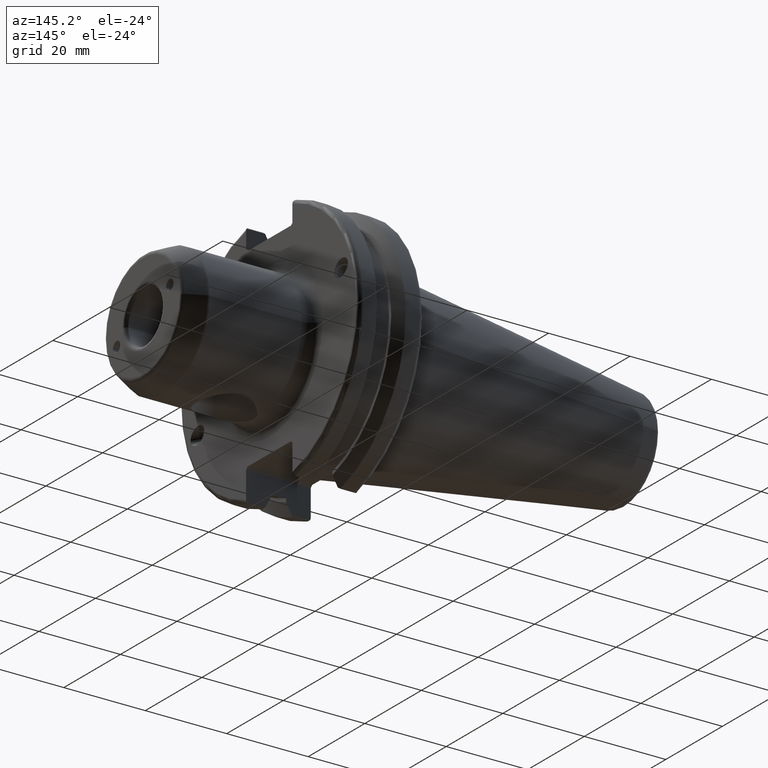
[diagram: clean part render]
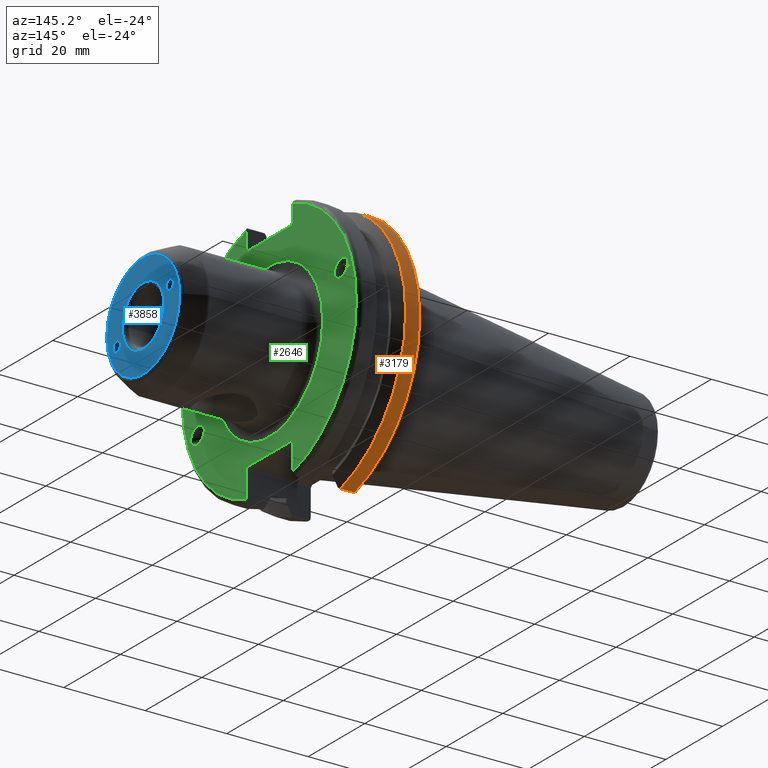
[diagram: same view with three faces highlighted in distinct colors, each labeled with its STEP entity id]
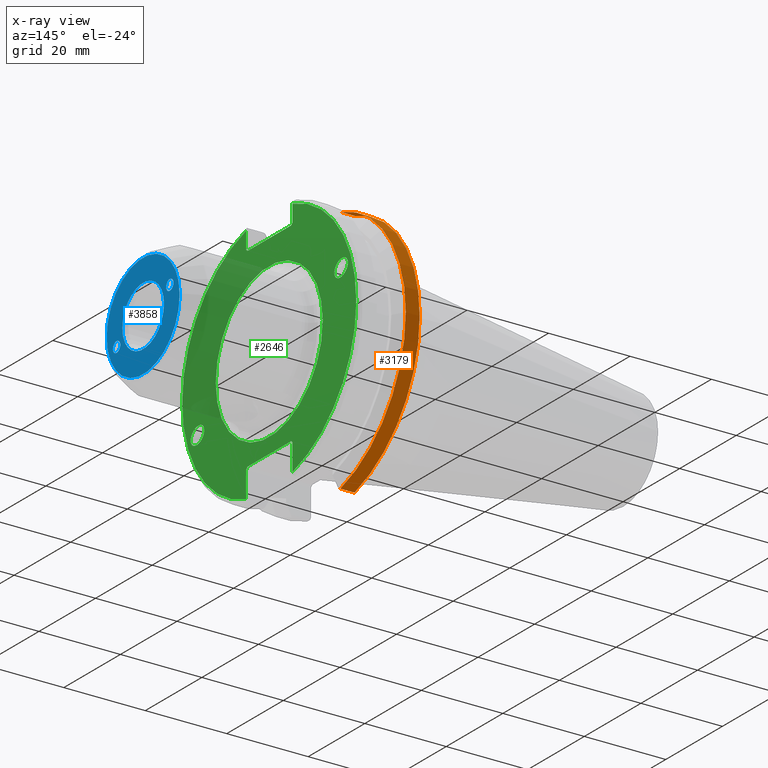
[diagram: x-ray of the same camera — body ghosted, the three highlighted faces saturated]
A machine part, auxiliary view with three faces highlighted in distinct colors.
The next image is the same camera in x-ray (body ghosted, the three faces saturated) — at least one of them is partly hidden behind the body in this view.
Their STEP definitions:

[orange] entity #3179 — the highlighted cylindrical surface (partial cylindrical patch) has radius 31.75 mm, axis along (1, 0, 0).
#836=CARTESIAN_POINT('',(7.607933230924E0,8.672048228027E0,3.054272547647E1));
#843=CARTESIAN_POINT('',(7.607933230924E0,0.E0,0.E0));
#844=DIRECTION('',(1.E0,0.E0,0.E0));
#845=DIRECTION('',(0.E0,1.E0,0.E0));
#846=AXIS2_PLACEMENT_3D('',#843,#844,#845);
#848=CARTESIAN_POINT('',(7.607933230924E0,0.E0,0.E0));
#849=DIRECTION('',(1.E0,0.E0,0.E0));
#850=DIRECTION('',(0.E0,2.731353772607E-1,-9.619756055580E-1));
#851=AXIS2_PLACEMENT_3D('',#848,#849,#850);
#861=CARTESIAN_POINT('',(4.175E0,0.E0,0.E0));
#862=DIRECTION('',(-1.E0,0.E0,0.E0));
#863=DIRECTION('',(0.E0,2.731353772607E-1,9.619756055580E-1));
#864=AXIS2_PLACEMENT_3D('',#861,#862,#863);
#866=CARTESIAN_POINT('',(4.175E0,8.672048228027E0,3.054272547647E1));
#874=DIRECTION('',(-1.E0,0.E0,0.E0));
#875=VECTOR('',#874,3.432933230924E0);
#876=CARTESIAN_POINT('',(7.607933230924E0,8.672048228027E0,-3.054272547647E1));
#877=LINE('',#876,#875);
#878=DIRECTION('',(1.E0,0.E0,0.E0));
#879=VECTOR('',#878,3.432933230924E0);
#880=CARTESIAN_POINT('',(4.175E0,8.672048228027E0,3.054272547647E1));
#881=LINE('',#880,#879);
#2116=VERTEX_POINT('',#866);
#2118=CARTESIAN_POINT('',(4.175E0,8.672048228027E0,-3.054272547647E1));
#2119=VERTEX_POINT('',#2118);
#2120=CARTESIAN_POINT('',(7.607933230924E0,8.672048228027E0,-3.054272547647E1));
#2121=VERTEX_POINT('',#2120);
#2146=VERTEX_POINT('',#836);
#2147=CARTESIAN_POINT('',(7.607933230924E0,3.175E1,0.E0));
#2148=VERTEX_POINT('',#2147);
#3167=CARTESIAN_POINT('',(5.391466615462E0,0.E0,0.E0));
#3168=DIRECTION('',(1.E0,0.E0,0.E0));
#3169=DIRECTION('',(0.E0,1.E0,0.E0));
#3170=AXIS2_PLACEMENT_3D('',#3167,#3168,#3169);
#3171=CYLINDRICAL_SURFACE('',#3170,3.175E1);
#3172=ORIENTED_EDGE('',*,*,#3149,.T.);
#3173=ORIENTED_EDGE('',*,*,#3133,.F.);
#3174=ORIENTED_EDGE('',*,*,#3119,.T.);
#3175=ORIENTED_EDGE('',*,*,#3117,.T.);
#3176=ORIENTED_EDGE('',*,*,#3160,.F.);
#3177=EDGE_LOOP('',(#3172,#3173,#3174,#3175,#3176));
#3178=FACE_OUTER_BOUND('',#3177,.F.);
#3179=ADVANCED_FACE('',(#3178),#3171,.T.);
#847=CIRCLE('',#846,3.175E1);
#852=CIRCLE('',#851,3.175E1);
#865=CIRCLE('',#864,3.175E1);
#3117=EDGE_CURVE('',#2148,#2146,#847,.T.);
#3119=EDGE_CURVE('',#2121,#2148,#852,.T.);
#3133=EDGE_CURVE('',#2121,#2119,#877,.T.);
#3149=EDGE_CURVE('',#2116,#2119,#865,.T.);
#3160=EDGE_CURVE('',#2116,#2146,#881,.T.);

[blue] entity #3858 — the highlighted planar face has unit normal (1, 0, 0).
#1531=CARTESIAN_POINT('',(5.E1,-2.500000000094E-2,0.E0));
#1532=DIRECTION('',(1.E0,0.E0,0.E0));
#1533=DIRECTION('',(0.E0,-1.E0,0.E0));
#1534=AXIS2_PLACEMENT_3D('',#1531,#1532,#1533);
#1536=CARTESIAN_POINT('',(5.E1,-2.500000000094E-2,0.E0));
#1537=DIRECTION('',(1.E0,0.E0,0.E0));
#1538=DIRECTION('',(0.E0,1.E0,0.E0));
#1539=AXIS2_PLACEMENT_3D('',#1536,#1537,#1538);
#1541=CARTESIAN_POINT('',(5.E1,-1.069972973270E1,-3.422240036628E0));
#1542=CARTESIAN_POINT('',(5.E1,-1.069972973270E1,-3.268989945432E0));
#1543=CARTESIAN_POINT('',(5.E1,-1.064382878668E1,-2.937833489841E0));
#1544=CARTESIAN_POINT('',(5.E1,-1.034655075062E1,-2.474723060525E0));
#1545=CARTESIAN_POINT('',(5.E1,-9.878852699807E0,-2.176128646144E0));
#1546=CARTESIAN_POINT('',(5.E1,-9.396926207859E0,-2.092059665098E0));
#1547=CARTESIAN_POINT('',(5.E1,-8.914999715911E0,-2.174620426444E0));
#1548=CARTESIAN_POINT('',(5.E1,-8.447301665097E0,-2.471751149938E0));
#1549=CARTESIAN_POINT('',(5.E1,-8.150023629043E0,-2.933931228675E0));
#1550=CARTESIAN_POINT('',(5.E1,-8.094122683018E0,-3.264912738689E0));
#1551=CARTESIAN_POINT('',(5.E1,-8.094122683018E0,-3.418162829886E0));
#1553=CARTESIAN_POINT('',(5.E1,-8.094122683018E0,-3.418162829886E0));
#1554=CARTESIAN_POINT('',(5.E1,-8.094122683018E0,-3.571412921082E0));
#1555=CARTESIAN_POINT('',(5.E1,-8.150023629043E0,-3.902569376673E0));
#1556=CARTESIAN_POINT('',(5.E1,-8.447301665097E0,-4.365679805988E0));
#1557=CARTESIAN_POINT('',(5.E1,-8.914999715911E0,-4.664274220369E0));
#1558=CARTESIAN_POINT('',(5.E1,-9.396926207859E0,-4.748343201416E0));
#1559=CARTESIAN_POINT('',(5.E1,-9.878852699807E0,-4.665782440070E0));
#1560=CARTESIAN_POINT('',(5.E1,-1.034655075062E1,-4.368651716575E0));
#1561=CARTESIAN_POINT('',(5.E1,-1.064382878668E1,-3.906471637838E0));
#1562=CARTESIAN_POINT('',(5.E1,-1.069972973270E1,-3.575490127824E0));
#1563=CARTESIAN_POINT('',(5.E1,-1.069972973270E1,-3.422240036628E0));
#1565=CARTESIAN_POINT('',(5.E1,8.094122683018E0,3.418162829886E0));
#1566=CARTESIAN_POINT('',(5.E1,8.094122683018E0,3.571412921082E0));
#1567=CARTESIAN_POINT('',(5.E1,8.150023629043E0,3.902569376673E0));
#1568=CARTESIAN_POINT('',(5.E1,8.447301665097E0,4.365679805988E0));
#1569=CARTESIAN_POINT('',(5.E1,8.914999715911E0,4.664274220369E0));
#1570=CARTESIAN_POINT('',(5.E1,9.396926207859E0,4.748343201416E0));
#1571=CARTESIAN_POINT('',(5.E1,9.878852699807E0,4.665782440070E0));
#1572=CARTESIAN_POINT('',(5.E1,1.034655075062E1,4.368651716575E0));
#1573=CARTESIAN_POINT('',(5.E1,1.064382878668E1,3.906471637838E0));
#1574=CARTESIAN_POINT('',(5.E1,1.069972973270E1,3.575490127824E0));
#1575=CARTESIAN_POINT('',(5.E1,1.069972973270E1,3.422240036628E0));
#1577=CARTESIAN_POINT('',(5.E1,1.069972973270E1,3.422240036628E0));
#1578=CARTESIAN_POINT('',(5.E1,1.069972973270E1,3.268989945432E0));
#1579=CARTESIAN_POINT('',(5.E1,1.064382878668E1,2.937833489841E0));
#1580=CARTESIAN_POINT('',(5.E1,1.034655075062E1,2.474723060525E0));
#1581=CARTESIAN_POINT('',(5.E1,9.878852699807E0,2.176128646144E0));
#1582=CARTESIAN_POINT('',(5.E1,9.396926207859E0,2.092059665098E0));
#1583=CARTESIAN_POINT('',(5.E1,8.914999715911E0,2.174620426444E0));
#1584=CARTESIAN_POINT('',(5.E1,8.447301665097E0,2.471751149938E0));
#1585=CARTESIAN_POINT('',(5.E1,8.150023629043E0,2.933931228675E0));
#1586=CARTESIAN_POINT('',(5.E1,8.094122683018E0,3.264912738689E0));
#1587=CARTESIAN_POINT('',(5.E1,8.094122683018E0,3.418162829886E0));
#1599=CARTESIAN_POINT('',(5.E1,0.E0,0.E0));
#1600=DIRECTION('',(-1.E0,0.E0,0.E0));
#1601=DIRECTION('',(0.E0,1.E0,0.E0));
#1602=AXIS2_PLACEMENT_3D('',#1599,#1600,#1601);
#1604=CARTESIAN_POINT('',(5.E1,0.E0,0.E0));
#1605=DIRECTION('',(1.E0,0.E0,0.E0));
#1606=DIRECTION('',(0.E0,1.E0,0.E0));
#1607=AXIS2_PLACEMENT_3D('',#1604,#1605,#1606);
#2285=CARTESIAN_POINT('',(5.E1,1.288792973919E1,0.E0));
#2287=VERTEX_POINT('',#2285);
#2295=CARTESIAN_POINT('',(5.E1,-1.288792973919E1,0.E0));
#2297=VERTEX_POINT('',#2295);
#2325=CARTESIAN_POINT('',(5.E1,-7.375000000001E0,0.E0));
#2326=CARTESIAN_POINT('',(5.E1,7.324999999999E0,0.E0));
#2327=VERTEX_POINT('',#2325);
#2328=VERTEX_POINT('',#2326);
#2365=VERTEX_POINT('',#1541);
#2366=VERTEX_POINT('',#1551);
#2369=VERTEX_POINT('',#1565);
#2370=VERTEX_POINT('',#1575);
#3831=CARTESIAN_POINT('',(5.E1,0.E0,0.E0));
#3832=DIRECTION('',(1.E0,0.E0,0.E0));
#3833=DIRECTION('',(0.E0,-1.E0,0.E0));
#3834=AXIS2_PLACEMENT_3D('',#3831,#3832,#3833);
#3835=PLANE('',#3834);
#3837=ORIENTED_EDGE('',*,*,#3836,.T.);
#3839=ORIENTED_EDGE('',*,*,#3838,.F.);
#3840=EDGE_LOOP('',(#3837,#3839));
#3841=FACE_OUTER_BOUND('',#3840,.F.);
#3843=ORIENTED_EDGE('',*,*,#3842,.T.);
#3845=ORIENTED_EDGE('',*,*,#3844,.T.);
#3846=EDGE_LOOP('',(#3843,#3845));
#3847=FACE_BOUND('',#3846,.F.);
#3849=ORIENTED_EDGE('',*,*,#3848,.F.);
#3851=ORIENTED_EDGE('',*,*,#3850,.F.);
#3852=EDGE_LOOP('',(#3849,#3851));
#3853=FACE_BOUND('',#3852,.F.);
#3854=ORIENTED_EDGE('',*,*,#3811,.F.);
#3855=ORIENTED_EDGE('',*,*,#3825,.F.);
#3856=EDGE_LOOP('',(#3854,#3855));
#3857=FACE_BOUND('',#3856,.F.);
#3858=ADVANCED_FACE('',(#3841,#3847,#3853,#3857),#3835,.T.);
#1535=CIRCLE('',#1534,7.35E0);
#1540=CIRCLE('',#1539,7.35E0);
#1552=B_SPLINE_CURVE_WITH_KNOTS('',3,(#1541,#1542,#1543,#1544,#1545,#1546,#1547,
#1548,#1549,#1550,#1551),.UNSPECIFIED.,.F.,.F.,(4,1,1,1,1,1,1,1,4),(0.E0,
1.25E-1,2.5E-1,3.75E-1,5.E-1,6.25E-1,7.5E-1,8.75E-1,1.E0),.UNSPECIFIED.);
#1564=B_SPLINE_CURVE_WITH_KNOTS('',3,(#1553,#1554,#1555,#1556,#1557,#1558,#1559,
#1560,#1561,#1562,#1563),.UNSPECIFIED.,.F.,.F.,(4,1,1,1,1,1,1,1,4),(0.E0,
1.25E-1,2.5E-1,3.75E-1,5.E-1,6.25E-1,7.5E-1,8.75E-1,1.E0),.UNSPECIFIED.);
#1576=B_SPLINE_CURVE_WITH_KNOTS('',3,(#1565,#1566,#1567,#1568,#1569,#1570,#1571,
#1572,#1573,#1574,#1575),.UNSPECIFIED.,.F.,.F.,(4,1,1,1,1,1,1,1,4),(0.E0,
1.25E-1,2.5E-1,3.75E-1,5.E-1,6.25E-1,7.5E-1,8.75E-1,1.E0),.UNSPECIFIED.);
#1588=B_SPLINE_CURVE_WITH_KNOTS('',3,(#1577,#1578,#1579,#1580,#1581,#1582,#1583,
#1584,#1585,#1586,#1587),.UNSPECIFIED.,.F.,.F.,(4,1,1,1,1,1,1,1,4),(0.E0,
1.25E-1,2.5E-1,3.75E-1,5.E-1,6.25E-1,7.5E-1,8.75E-1,1.E0),.UNSPECIFIED.);
#1603=CIRCLE('',#1602,1.288792973919E1);
#1608=CIRCLE('',#1607,1.288792973919E1);
#3811=EDGE_CURVE('',#2369,#2370,#1576,.T.);
#3825=EDGE_CURVE('',#2370,#2369,#1588,.T.);
#3836=EDGE_CURVE('',#2287,#2297,#1603,.T.);
#3838=EDGE_CURVE('',#2287,#2297,#1608,.T.);
#3842=EDGE_CURVE('',#2327,#2328,#1535,.T.);
#3844=EDGE_CURVE('',#2328,#2327,#1540,.T.);
#3848=EDGE_CURVE('',#2365,#2366,#1552,.T.);
#3850=EDGE_CURVE('',#2366,#2365,#1564,.T.);

[green] entity #2646 — the highlighted planar face has unit normal (1, 0, 0).
#283=CARTESIAN_POINT('',(1.905E1,0.E0,0.E0));
#284=DIRECTION('',(1.E0,0.E0,0.E0));
#285=DIRECTION('',(0.E0,2.663414634146E-1,-9.638787397106E-1));
#286=AXIS2_PLACEMENT_3D('',#283,#284,#285);
#288=DIRECTION('',(0.E0,7.071067811865E-1,-7.071067811866E-1));
#289=VECTOR('',#288,7.071067811865E-1);
#290=CARTESIAN_POINT('',(1.905E1,7.69E0,-2.26E1));
#291=LINE('',#290,#289);
#292=DIRECTION('',(0.E0,7.071067811866E-1,7.071067811865E-1));
#293=VECTOR('',#292,7.071067811865E-1);
#294=CARTESIAN_POINT('',(1.905E1,-8.19E0,-2.31E1));
#295=LINE('',#294,#293);
#296=CARTESIAN_POINT('',(1.905E1,0.E0,0.E0));
#297=DIRECTION('',(1.E0,0.E0,0.E0));
#298=DIRECTION('',(0.E0,-2.663414634146E-1,9.638787397106E-1));
#299=AXIS2_PLACEMENT_3D('',#296,#297,#298);
#301=DIRECTION('',(0.E0,-7.071067811865E-1,7.071067811865E-1));
#302=VECTOR('',#301,7.071067811865E-1);
#303=CARTESIAN_POINT('',(1.905E1,-7.69E0,2.5E1));
#304=LINE('',#303,#302);
#305=DIRECTION('',(0.E0,-7.071067811865E-1,-7.071067811865E-1));
#306=VECTOR('',#305,7.071067811865E-1);
#307=CARTESIAN_POINT('',(1.905E1,8.19E0,2.55E1));
#308=LINE('',#307,#306);
#309=CARTESIAN_POINT('',(1.905E1,-2.307739501582E1,-8.399484870160E0));
#310=CARTESIAN_POINT('',(1.905E1,-2.299678009493E1,-8.620972544956E0));
#311=CARTESIAN_POINT('',(1.905E1,-2.292107071815E1,-9.135287304495E0));
#312=CARTESIAN_POINT('',(1.905E1,-2.320122540069E1,-9.994480892166E0));
#313=CARTESIAN_POINT('',(1.905E1,-2.386818019047E1,-1.072475335028E1));
#314=CARTESIAN_POINT('',(1.905E1,-2.467305162682E1,-1.115406659068E1));
#315=CARTESIAN_POINT('',(1.905E1,-2.556557614966E1,-1.134255495518E1));
#316=CARTESIAN_POINT('',(1.905E1,-2.654590324796E1,-1.121184407178E1));
#317=CARTESIAN_POINT('',(1.905E1,-2.731279317820E1,-1.073374355711E1));
#318=CARTESIAN_POINT('',(1.905E1,-2.758539158574E1,-1.029109054422E1));
#319=CARTESIAN_POINT('',(1.905E1,-2.766600650662E1,-1.006960286943E1));
#321=CARTESIAN_POINT('',(1.905E1,-2.766600650662E1,-1.006960286943E1));
#322=CARTESIAN_POINT('',(1.905E1,-2.774662142751E1,-9.848115194630E0));
#323=CARTESIAN_POINT('',(1.905E1,-2.782233080428E1,-9.333800435091E0));
#324=CARTESIAN_POINT('',(1.905E1,-2.754217612175E1,-8.474606847420E0));
#325=CARTESIAN_POINT('',(1.905E1,-2.687522133196E1,-7.744334389310E0));
#326=CARTESIAN_POINT('',(1.905E1,-2.607034989562E1,-7.315021148904E0));
#327=CARTESIAN_POINT('',(1.905E1,-2.517782537278E1,-7.126532784402E0));
#328=CARTESIAN_POINT('',(1.905E1,-2.419749827448E1,-7.257243667807E0));
#329=CARTESIAN_POINT('',(1.905E1,-2.343060834424E1,-7.735344182475E0));
#330=CARTESIAN_POINT('',(1.905E1,-2.315800993670E1,-8.177997195364E0));
#331=CARTESIAN_POINT('',(1.905E1,-2.307739501582E1,-8.399484870160E0));
#333=CARTESIAN_POINT('',(1.905E1,2.307739501582E1,8.399484870160E0));
#334=CARTESIAN_POINT('',(1.905E1,2.299678009493E1,8.620972544956E0));
#335=CARTESIAN_POINT('',(1.905E1,2.292107071815E1,9.135287304495E0));
#336=CARTESIAN_POINT('',(1.905E1,2.320122540069E1,9.994480892166E0));
#337=CARTESIAN_POINT('',(1.905E1,2.386818019047E1,1.072475335028E1));
#338=CARTESIAN_POINT('',(1.905E1,2.467305162682E1,1.115406659068E1));
#339=CARTESIAN_POINT('',(1.905E1,2.556557614966E1,1.134255495518E1));
#340=CARTESIAN_POINT('',(1.905E1,2.654590324796E1,1.121184407178E1));
#341=CARTESIAN_POINT('',(1.905E1,2.731279317820E1,1.073374355711E1));
#342=CARTESIAN_POINT('',(1.905E1,2.758539158574E1,1.029109054422E1));
#343=CARTESIAN_POINT('',(1.905E1,2.766600650662E1,1.006960286943E1));
#345=CARTESIAN_POINT('',(1.905E1,2.766600650662E1,1.006960286943E1));
#346=CARTESIAN_POINT('',(1.905E1,2.774662142751E1,9.848115194630E0));
#347=CARTESIAN_POINT('',(1.905E1,2.782233080428E1,9.333800435091E0));
#348=CARTESIAN_POINT('',(1.905E1,2.754217612175E1,8.474606847420E0));
#349=CARTESIAN_POINT('',(1.905E1,2.687522133196E1,7.744334389310E0));
#350=CARTESIAN_POINT('',(1.905E1,2.607034989562E1,7.315021148904E0));
#351=CARTESIAN_POINT('',(1.905E1,2.517782537278E1,7.126532784402E0));
#352=CARTESIAN_POINT('',(1.905E1,2.419749827448E1,7.257243667807E0));
#353=CARTESIAN_POINT('',(1.905E1,2.343060834424E1,7.735344182475E0));
#354=CARTESIAN_POINT('',(1.905E1,2.315800993670E1,8.177997195364E0));
#355=CARTESIAN_POINT('',(1.905E1,2.307739501582E1,8.399484870160E0));
#357=CARTESIAN_POINT('',(1.905E1,0.E0,0.E0));
#358=DIRECTION('',(1.E0,0.E0,0.E0));
#359=DIRECTION('',(0.E0,1.E0,0.E0));
#360=AXIS2_PLACEMENT_3D('',#357,#358,#359);
#362=CARTESIAN_POINT('',(1.905E1,0.E0,0.E0));
#363=DIRECTION('',(1.E0,0.E0,0.E0));
#364=DIRECTION('',(0.E0,-1.E0,0.E0));
#365=AXIS2_PLACEMENT_3D('',#362,#363,#364);
#372=CARTESIAN_POINT('',(1.905E1,8.19E0,2.963927124610E1));
#379=DIRECTION('',(0.E0,0.E0,1.E0));
#380=VECTOR('',#379,4.139271246102E0);
#381=CARTESIAN_POINT('',(1.905E1,8.19E0,2.55E1));
#382=LINE('',#381,#380);
#426=DIRECTION('',(0.E0,1.E0,0.E0));
#427=VECTOR('',#426,1.538E1);
#428=CARTESIAN_POINT('',(1.905E1,-7.69E0,2.5E1));
#429=LINE('',#428,#427);
#596=DIRECTION('',(0.E0,0.E0,-1.E0));
#597=VECTOR('',#596,4.139271246102E0);
#598=CARTESIAN_POINT('',(1.905E1,-8.19E0,2.963927124610E1));
#599=LINE('',#598,#597);
#612=DIRECTION('',(0.E0,0.E0,-1.E0));
#613=VECTOR('',#612,6.539271246102E0);
#614=CARTESIAN_POINT('',(1.905E1,-8.19E0,-2.31E1));
#615=LINE('',#614,#613);
#659=DIRECTION('',(0.E0,-1.E0,0.E0));
#660=VECTOR('',#659,1.538E1);
#661=CARTESIAN_POINT('',(1.905E1,7.69E0,-2.26E1));
#662=LINE('',#661,#660);
#701=DIRECTION('',(0.E0,0.E0,1.E0));
#702=VECTOR('',#701,6.539271246102E0);
#703=CARTESIAN_POINT('',(1.905E1,8.19E0,-2.963927124610E1));
#704=LINE('',#703,#702);
#2038=VERTEX_POINT('',#372);
#2040=CARTESIAN_POINT('',(1.905E1,8.19E0,-2.963927124610E1));
#2041=VERTEX_POINT('',#2040);
#2049=CARTESIAN_POINT('',(1.905E1,8.19E0,-2.31E1));
#2050=VERTEX_POINT('',#2049);
#2061=CARTESIAN_POINT('',(1.905E1,8.19E0,2.55E1));
#2062=VERTEX_POINT('',#2061);
#2063=CARTESIAN_POINT('',(1.905E1,7.69E0,2.5E1));
#2064=VERTEX_POINT('',#2063);
#2065=CARTESIAN_POINT('',(1.905E1,-7.69E0,2.5E1));
#2066=VERTEX_POINT('',#2065);
#2067=CARTESIAN_POINT('',(1.905E1,-8.19E0,2.55E1));
#2068=VERTEX_POINT('',#2067);
#2069=CARTESIAN_POINT('',(1.905E1,-8.19E0,2.963927124610E1));
#2070=VERTEX_POINT('',#2069);
#2071=CARTESIAN_POINT('',(1.905E1,-8.19E0,-2.963927124610E1));
#2072=VERTEX_POINT('',#2071);
#2073=CARTESIAN_POINT('',(1.905E1,-8.19E0,-2.31E1));
#2074=VERTEX_POINT('',#2073);
#2075=CARTESIAN_POINT('',(1.905E1,-7.69E0,-2.26E1));
#2076=VERTEX_POINT('',#2075);
#2077=CARTESIAN_POINT('',(1.905E1,7.69E0,-2.26E1));
#2078=VERTEX_POINT('',#2077);
#2174=CARTESIAN_POINT('',(1.905E1,-2.766600650662E1,-1.006960286943E1));
#2176=VERTEX_POINT('',#2174);
#2178=VERTEX_POINT('',#309);
#2213=CARTESIAN_POINT('',(1.905E1,2.766600650662E1,1.006960286943E1));
#2215=VERTEX_POINT('',#2213);
#2217=VERTEX_POINT('',#333);
#2305=CARTESIAN_POINT('',(1.905E1,1.89E1,0.E0));
#2306=CARTESIAN_POINT('',(1.905E1,-1.89E1,0.E0));
#2307=VERTEX_POINT('',#2305);
#2308=VERTEX_POINT('',#2306);
#2599=CARTESIAN_POINT('',(1.905E1,0.E0,0.E0));
#2600=DIRECTION('',(1.E0,0.E0,0.E0));
#2601=DIRECTION('',(0.E0,0.E0,-1.E0));
#2602=AXIS2_PLACEMENT_3D('',#2599,#2600,#2601);
#2603=PLANE('',#2602);
#2605=ORIENTED_EDGE('',*,*,#2604,.F.);
#2607=ORIENTED_EDGE('',*,*,#2606,.T.);
#2609=ORIENTED_EDGE('',*,*,#2608,.F.);
#2611=ORIENTED_EDGE('',*,*,#2610,.T.);
#2613=ORIENTED_EDGE('',*,*,#2612,.F.);
#2615=ORIENTED_EDGE('',*,*,#2614,.T.);
#2617=ORIENTED_EDGE('',*,*,#2616,.F.);
#2619=ORIENTED_EDGE('',*,*,#2618,.T.);
#2621=ORIENTED_EDGE('',*,*,#2620,.F.);
#2623=ORIENTED_EDGE('',*,*,#2622,.T.);
#2625=ORIENTED_EDGE('',*,*,#2624,.F.);
#2627=ORIENTED_EDGE('',*,*,#2626,.T.);
#2628=EDGE_LOOP('',(#2605,#2607,#2609,#2611,#2613,#2615,#2617,#2619,#2621,#2623,
#2625,#2627));
#2629=FACE_OUTER_BOUND('',#2628,.F.);
#2630=ORIENTED_EDGE('',*,*,#2581,.F.);
#2631=ORIENTED_EDGE('',*,*,#2592,.F.);
#2632=EDGE_LOOP('',(#2630,#2631));
#2633=FACE_BOUND('',#2632,.F.);
#2635=ORIENTED_EDGE('',*,*,#2634,.F.);
#2637=ORIENTED_EDGE('',*,*,#2636,.F.);
#2638=EDGE_LOOP('',(#2635,#2637));
#2639=FACE_BOUND('',#2638,.F.);
#2641=ORIENTED_EDGE('',*,*,#2640,.T.);
#2643=ORIENTED_EDGE('',*,*,#2642,.T.);
#2644=EDGE_LOOP('',(#2641,#2643));
#2645=FACE_BOUND('',#2644,.F.);
#2646=ADVANCED_FACE('',(#2629,#2633,#2639,#2645),#2603,.T.);
#287=CIRCLE('',#286,3.075E1);
#300=CIRCLE('',#299,3.075E1);
#320=B_SPLINE_CURVE_WITH_KNOTS('',3,(#309,#310,#311,#312,#313,#314,#315,#316,
#317,#318,#319),.UNSPECIFIED.,.F.,.F.,(4,1,1,1,1,1,1,1,4),(0.E0,1.25E-1,2.5E-1,
3.75E-1,5.E-1,6.25E-1,7.5E-1,8.75E-1,1.E0),.UNSPECIFIED.);
#332=B_SPLINE_CURVE_WITH_KNOTS('',3,(#321,#322,#323,#324,#325,#326,#327,#328,
#329,#330,#331),.UNSPECIFIED.,.F.,.F.,(4,1,1,1,1,1,1,1,4),(0.E0,1.25E-1,2.5E-1,
3.75E-1,5.E-1,6.25E-1,7.5E-1,8.75E-1,1.E0),.UNSPECIFIED.);
#344=B_SPLINE_CURVE_WITH_KNOTS('',3,(#333,#334,#335,#336,#337,#338,#339,#340,
#341,#342,#343),.UNSPECIFIED.,.F.,.F.,(4,1,1,1,1,1,1,1,4),(0.E0,1.25E-1,2.5E-1,
3.75E-1,5.E-1,6.25E-1,7.5E-1,8.75E-1,1.E0),.UNSPECIFIED.);
#356=B_SPLINE_CURVE_WITH_KNOTS('',3,(#345,#346,#347,#348,#349,#350,#351,#352,
#353,#354,#355),.UNSPECIFIED.,.F.,.F.,(4,1,1,1,1,1,1,1,4),(0.E0,1.25E-1,2.5E-1,
3.75E-1,5.E-1,6.25E-1,7.5E-1,8.75E-1,1.E0),.UNSPECIFIED.);
#361=CIRCLE('',#360,1.89E1);
#366=CIRCLE('',#365,1.89E1);
#2581=EDGE_CURVE('',#2178,#2176,#320,.T.);
#2592=EDGE_CURVE('',#2176,#2178,#332,.T.);
#2604=EDGE_CURVE('',#2041,#2038,#287,.T.);
#2606=EDGE_CURVE('',#2041,#2050,#704,.T.);
#2608=EDGE_CURVE('',#2078,#2050,#291,.T.);
#2610=EDGE_CURVE('',#2078,#2076,#662,.T.);
#2612=EDGE_CURVE('',#2074,#2076,#295,.T.);
#2614=EDGE_CURVE('',#2074,#2072,#615,.T.);
#2616=EDGE_CURVE('',#2070,#2072,#300,.T.);
#2618=EDGE_CURVE('',#2070,#2068,#599,.T.);
#2620=EDGE_CURVE('',#2066,#2068,#304,.T.);
#2622=EDGE_CURVE('',#2066,#2064,#429,.T.);
#2624=EDGE_CURVE('',#2062,#2064,#308,.T.);
#2626=EDGE_CURVE('',#2062,#2038,#382,.T.);
#2634=EDGE_CURVE('',#2217,#2215,#344,.T.);
#2636=EDGE_CURVE('',#2215,#2217,#356,.T.);
#2640=EDGE_CURVE('',#2307,#2308,#361,.T.);
#2642=EDGE_CURVE('',#2308,#2307,#366,.T.);